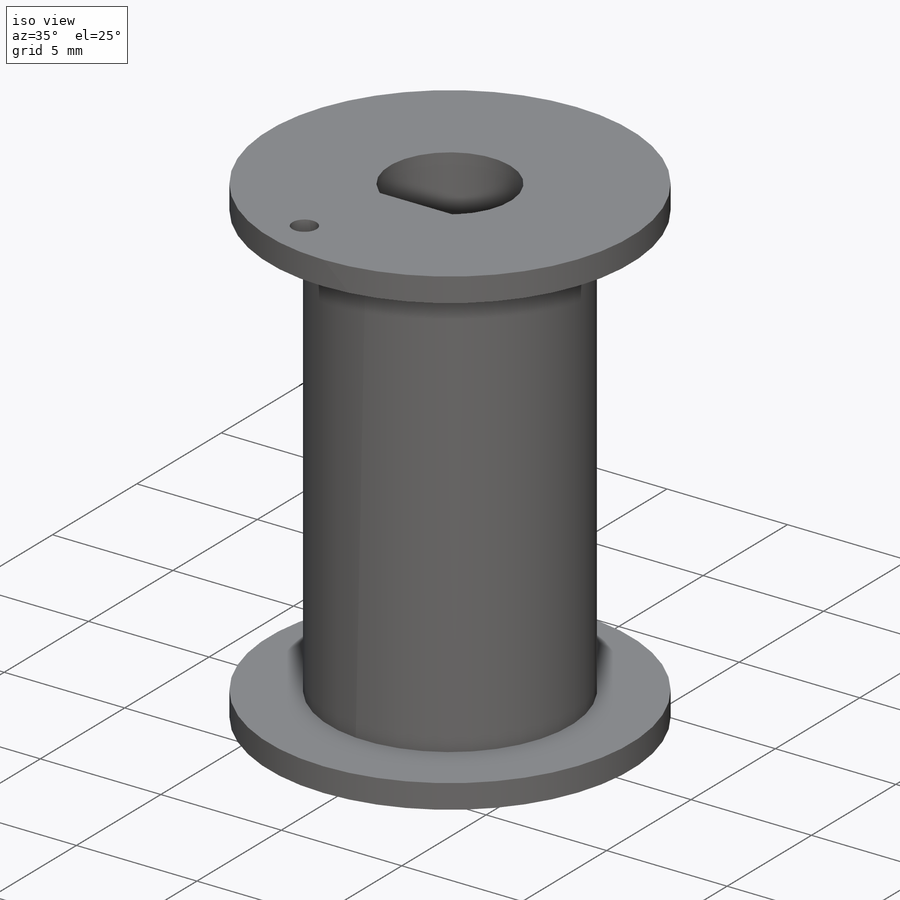
[diagram: iso view]
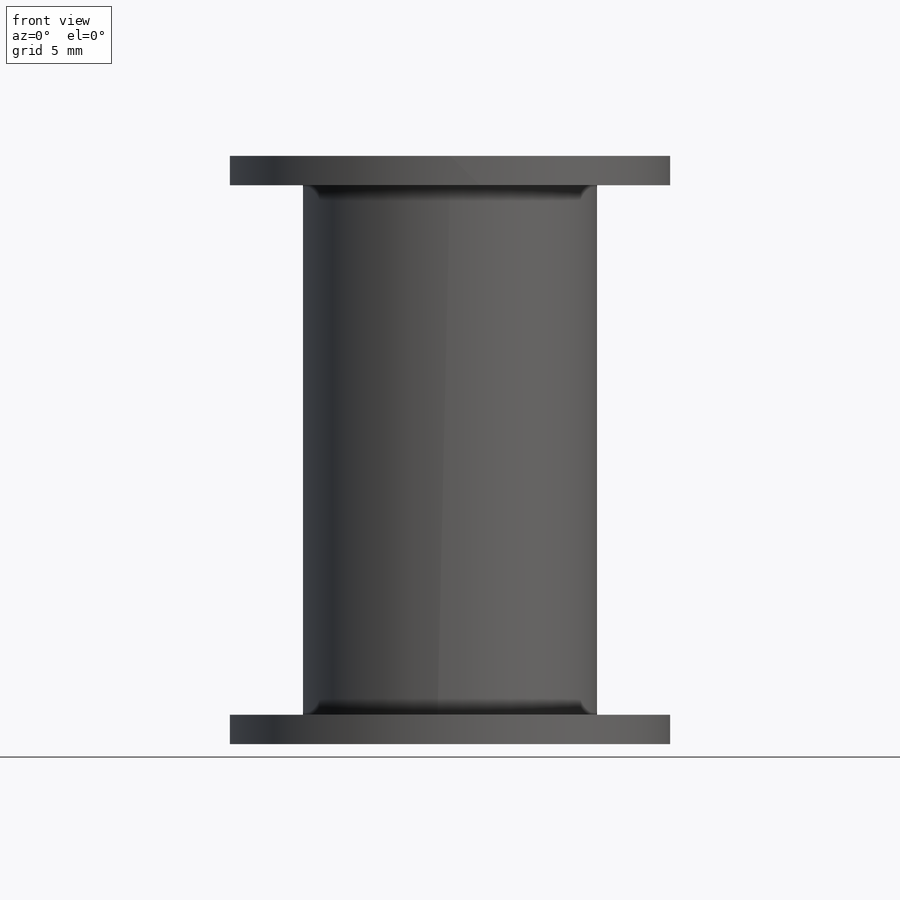
[diagram: front view]
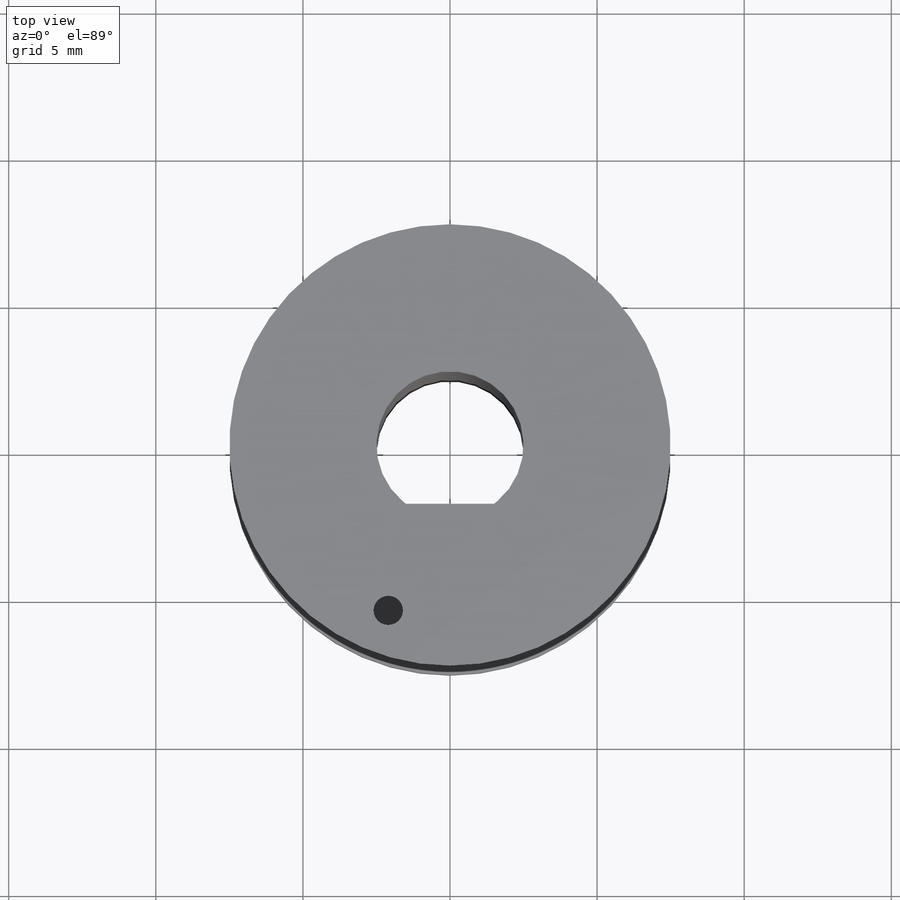
[diagram: top view]
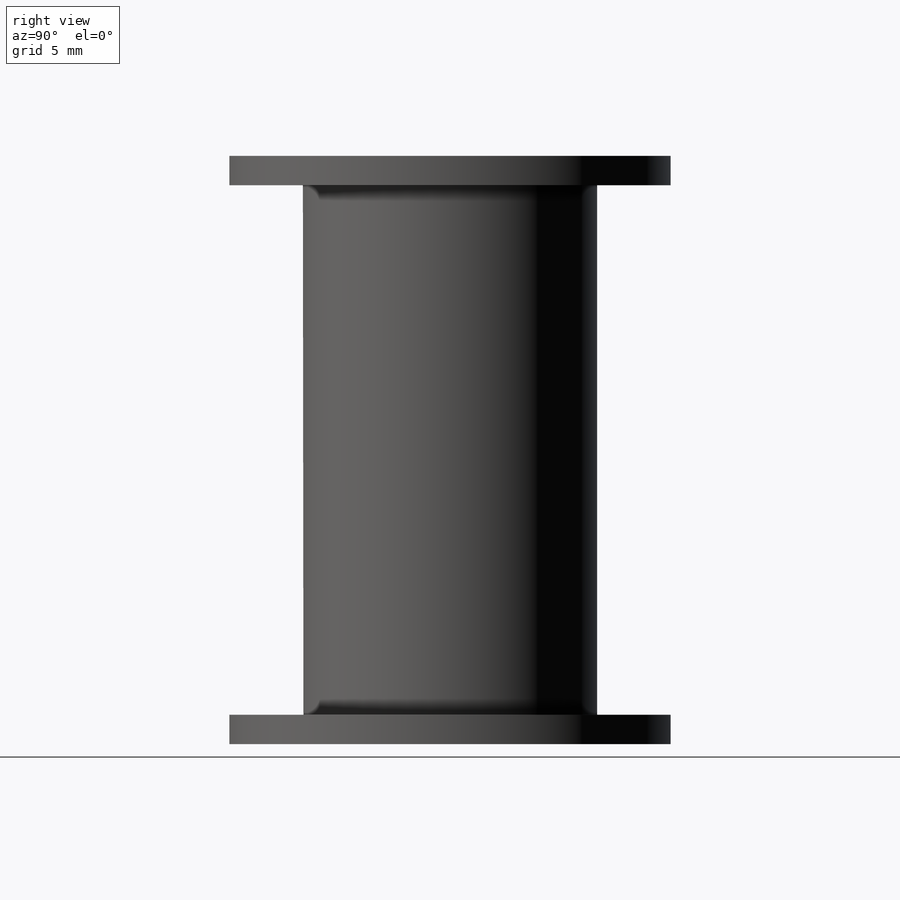
[diagram: right view]
SOLIDWORKS PART (.sldprt)
format: sldprt  version: not decoded by parser v0  size: 142,336 bytes
history: native  units: mm
features: sketch x6, extrude x4, cut_extrude x2, material x1 (+16 scaffold rows collapsed)
feature tree (29):
  scaffold x16  (default folders/planes/origin — collapsed)
  material  "Material <not specified>"
  sketch  "Sketch1"  dims[D1=10.0mm]
  extrude  "Boss-Extrude1"  Depth=20mm
  sketch  "Sketch2"  dims[D1=~3.562799mm]
  cut_extrude  "Cut-Extrude1"  [1 undecoded]
  sketch  "Sketch3"  dims[D1=0.5mm]
  extrude  "Boss-Extrude2"  Depth=18mm
  sketch  "Sketch4"  dims[D1=~9.762486mm]
  sketch  "Sketch5"  dims[D1=~6.762985mm]
  extrude  "Boss-Extrude3"  Depth=1mm
  extrude  "Boss-Extrude4"  Depth=1mm
  sketch  "Sketch7"  dims[D1=~0.751896mm]
  cut_extrude  "Cut-Extrude2"  [1 undecoded]
decode coverage: 10 of 12 modeling features carry decoded parameters
note: ~ marks probable driven/reference dimensions
note: 2 parameter values undecoded
note: suppression state not decoded; provenance and decode notes live in map.json
